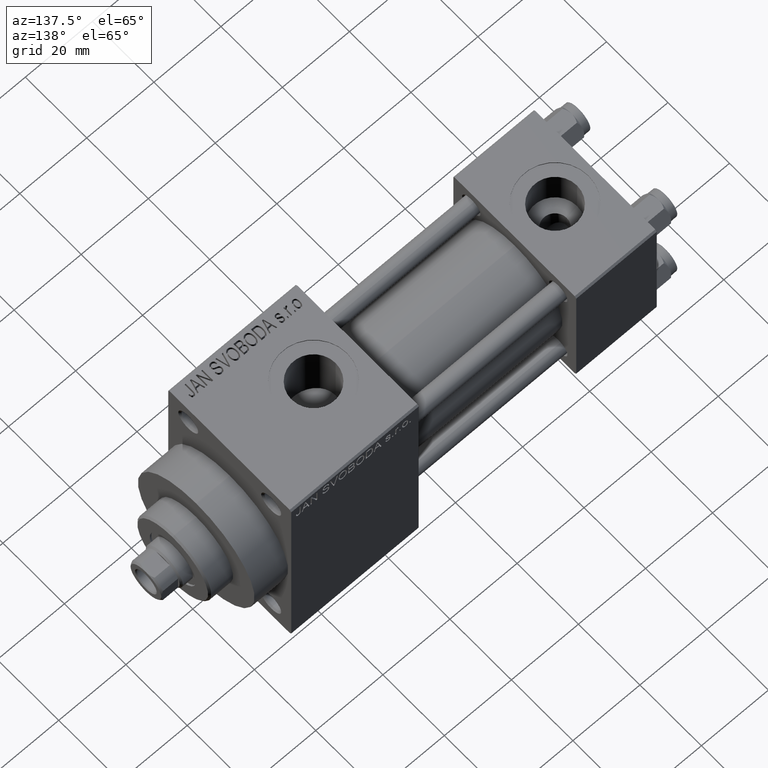
[diagram: clean part render]
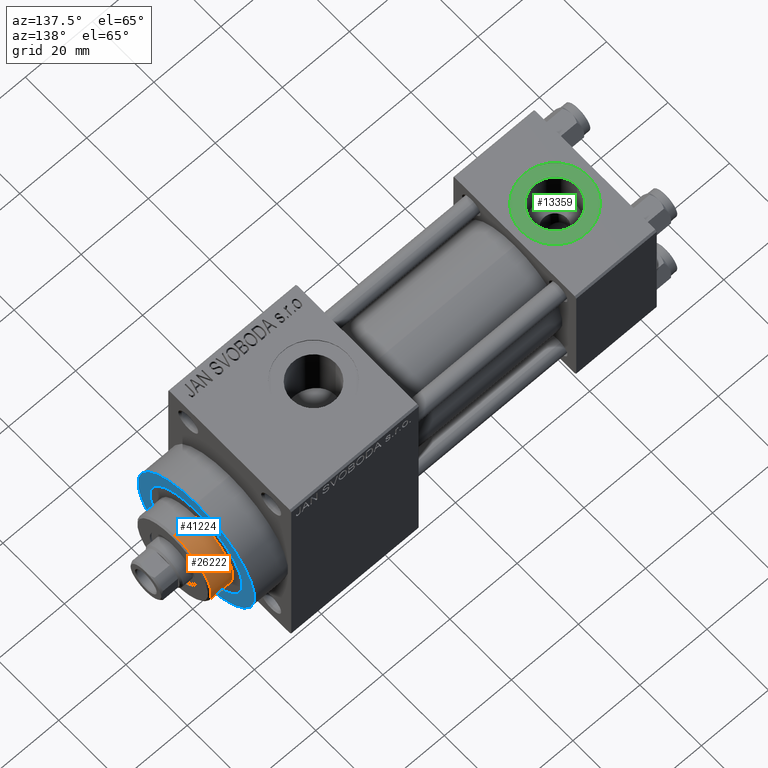
[diagram: same view with three faces highlighted in distinct colors, each labeled with its STEP entity id]
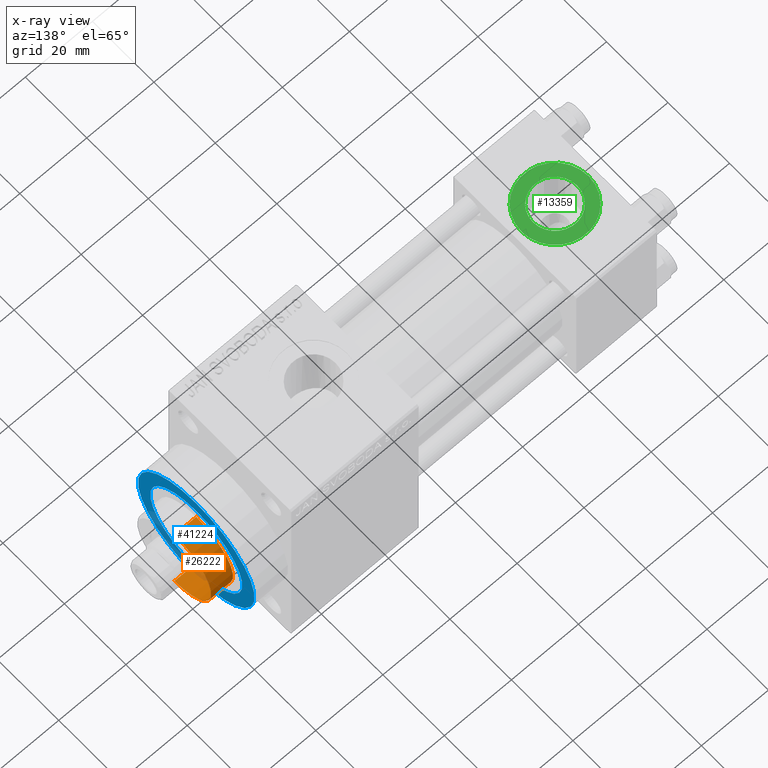
[diagram: x-ray of the same camera — body ghosted, the three highlighted faces saturated]
A machine part, auxiliary view with three faces highlighted in distinct colors.
The next image is the same camera in x-ray (body ghosted, the three faces saturated) — at least one of them is partly hidden behind the body in this view.
Their STEP definitions:

[orange] entity #26222 — the highlighted cylindrical surface (partial cylindrical patch) has radius 12 mm, axis along (-1, 0, 0).
#4582 = EDGE_CURVE ( 'NONE', #15709, #36265, #44507, .T. ) ;
#5243 = CARTESIAN_POINT ( 'NONE',  ( -12.00000000000000178, 0.000000000000000000, 43.25999999999999801 ) ) ;
#5631 = EDGE_CURVE ( 'NONE', #39775, #15709, #23730, .T. ) ;
#7467 = CARTESIAN_POINT ( 'NONE',  ( 12.00000000000000178, 1.469576158976824144E-15, 49.76000000000000512 ) ) ;
#9424 = CARTESIAN_POINT ( 'NONE',  ( 0.000000000000000000, 0.000000000000000000, 43.25999999999999801 ) ) ;
#11336 = CARTESIAN_POINT ( 'NONE',  ( 12.00000000000000178, 1.469576158976824144E-15, 50.25999999999999801 ) ) ;
#11457 = ORIENTED_EDGE ( 'NONE', *, *, #33316, .F. ) ;
#14896 = LINE ( 'NONE', #11336, #30639 ) ;
#15709 = VERTEX_POINT ( 'NONE', #26873 ) ;
#19821 = DIRECTION ( 'NONE',  ( -0.000000000000000000, -0.000000000000000000, -1.000000000000000000 ) ) ;
#22785 = ORIENTED_EDGE ( 'NONE', *, *, #4582, .T. ) ;
#23048 = CARTESIAN_POINT ( 'NONE',  ( -12.00000000000000178, 0.000000000000000000, 50.25999999999999801 ) ) ;
#23730 = CIRCLE ( 'NONE', #25213, 12.00000000000000178 ) ;
#24125 = DIRECTION ( 'NONE',  ( 0.000000000000000000, 0.000000000000000000, 1.000000000000000000 ) ) ;
#24601 = AXIS2_PLACEMENT_3D ( 'NONE', #9424, #24125, #46076 ) ;
#25213 = AXIS2_PLACEMENT_3D ( 'NONE', #41892, #42884, #46679 ) ;
#25813 = DIRECTION ( 'NONE',  ( -0.000000000000000000, -0.000000000000000000, -1.000000000000000000 ) ) ;
#26222 = ADVANCED_FACE ( 'NONE', ( #30786 ), #37445, .T. ) ;
#26589 = VERTEX_POINT ( 'NONE', #33762 ) ;
#26618 = DIRECTION ( 'NONE',  ( -0.000000000000000000, -0.000000000000000000, -1.000000000000000000 ) ) ;
#26873 = CARTESIAN_POINT ( 'NONE',  ( -12.00000000000000178, 0.000000000000000000, 49.76000000000000512 ) ) ;
#28114 = EDGE_LOOP ( 'NONE', ( #11457, #39847, #22785, #44025 ) ) ;
#30297 = CARTESIAN_POINT ( 'NONE',  ( 0.000000000000000000, 0.000000000000000000, 50.25999999999999801 ) ) ;
#30639 = VECTOR ( 'NONE', #25813, 1000.000000000000000 ) ;
#30786 = FACE_OUTER_BOUND ( 'NONE', #28114, .T. ) ;
#32966 = CIRCLE ( 'NONE', #24601, 12.00000000000000178 ) ;
#33011 = EDGE_CURVE ( 'NONE', #36265, #26589, #32966, .T. ) ;
#33316 = EDGE_CURVE ( 'NONE', #39775, #26589, #14896, .T. ) ;
#33762 = CARTESIAN_POINT ( 'NONE',  ( 12.00000000000000178, 1.469576158976824144E-15, 43.25999999999999801 ) ) ;
#34355 = DIRECTION ( 'NONE',  ( -1.000000000000000000, 0.000000000000000000, 0.000000000000000000 ) ) ;
#36265 = VERTEX_POINT ( 'NONE', #5243 ) ;
#37445 = CYLINDRICAL_SURFACE ( 'NONE', #38131, 12.00000000000000178 ) ;
#38131 = AXIS2_PLACEMENT_3D ( 'NONE', #30297, #19821, #34355 ) ;
#39775 = VERTEX_POINT ( 'NONE', #7467 ) ;
#39847 = ORIENTED_EDGE ( 'NONE', *, *, #5631, .T. ) ;
#41892 = CARTESIAN_POINT ( 'NONE',  ( 0.000000000000000000, 0.000000000000000000, 49.76000000000000512 ) ) ;
#42884 = DIRECTION ( 'NONE',  ( 0.000000000000000000, 0.000000000000000000, -1.000000000000000000 ) ) ;
#44025 = ORIENTED_EDGE ( 'NONE', *, *, #33011, .T. ) ;
#44243 = VECTOR ( 'NONE', #26618, 1000.000000000000000 ) ;
#44507 = LINE ( 'NONE', #23048, #44243 ) ;
#46076 = DIRECTION ( 'NONE',  ( 1.000000000000000000, 0.000000000000000000, 0.000000000000000000 ) ) ;
#46679 = DIRECTION ( 'NONE',  ( 1.000000000000000000, 0.000000000000000000, 0.000000000000000000 ) ) ;

[blue] entity #41224 — the highlighted planar face has unit normal (1, 0, 0).
#3375 = CARTESIAN_POINT ( 'NONE',  ( 119.0000000000000142, 0.000000000000000000, 19.00000000000000000 ) ) ;
#4418 = CARTESIAN_POINT ( 'NONE',  ( 119.0000000000000142, 2.326828918379970970E-15, -19.00000000000000000 ) ) ;
#6524 = DIRECTION ( 'NONE',  ( 1.000000000000000000, 0.000000000000000000, 0.000000000000000000 ) ) ;
#7209 = ORIENTED_EDGE ( 'NONE', *, *, #45722, .F. ) ;
#10759 = CIRCLE ( 'NONE', #18335, 19.00000000000000000 ) ;
#11217 = EDGE_LOOP ( 'NONE', ( #7209, #17182 ) ) ;
#13296 = EDGE_LOOP ( 'NONE', ( #43618, #29512 ) ) ;
#13362 = FACE_OUTER_BOUND ( 'NONE', #13296, .T. ) ;
#13668 = CARTESIAN_POINT ( 'NONE',  ( 119.0000000000000142, 0.000000000000000000, 0.000000000000000000 ) ) ;
#14082 = AXIS2_PLACEMENT_3D ( 'NONE', #28939, #45966, #43490 ) ;
#16708 = CIRCLE ( 'NONE', #31890, 15.00000000000000000 ) ;
#17141 = FACE_BOUND ( 'NONE', #11217, .T. ) ;
#17182 = ORIENTED_EDGE ( 'NONE', *, *, #39369, .F. ) ;
#18128 = VERTEX_POINT ( 'NONE', #4418 ) ;
#18335 = AXIS2_PLACEMENT_3D ( 'NONE', #23967, #42103, #37820 ) ;
#19030 = DIRECTION ( 'NONE',  ( 0.000000000000000000, 0.000000000000000000, -1.000000000000000000 ) ) ;
#20898 = CIRCLE ( 'NONE', #46784, 19.00000000000000000 ) ;
#21476 = DIRECTION ( 'NONE',  ( 0.000000000000000000, 0.000000000000000000, -1.000000000000000000 ) ) ;
#21690 = AXIS2_PLACEMENT_3D ( 'NONE', #24032, #28087, #42634 ) ;
#23967 = CARTESIAN_POINT ( 'NONE',  ( 119.0000000000000142, 0.000000000000000000, 0.000000000000000000 ) ) ;
#24032 = CARTESIAN_POINT ( 'NONE',  ( 119.0000000000000142, 0.000000000000000000, 0.000000000000000000 ) ) ;
#26562 = EDGE_CURVE ( 'NONE', #46956, #18128, #10759, .T. ) ;
#28087 = DIRECTION ( 'NONE',  ( 1.000000000000000000, 0.000000000000000000, 0.000000000000000000 ) ) ;
#28939 = CARTESIAN_POINT ( 'NONE',  ( 119.0000000000000142, 0.000000000000000000, 0.000000000000000000 ) ) ;
#29512 = ORIENTED_EDGE ( 'NONE', *, *, #39175, .T. ) ;
#29996 = CARTESIAN_POINT ( 'NONE',  ( 119.0000000000000142, 0.000000000000000000, 0.000000000000000000 ) ) ;
#31890 = AXIS2_PLACEMENT_3D ( 'NONE', #13668, #6524, #21476 ) ;
#34614 = CIRCLE ( 'NONE', #14082, 15.00000000000000000 ) ;
#36750 = VERTEX_POINT ( 'NONE', #39916 ) ;
#37820 = DIRECTION ( 'NONE',  ( 0.000000000000000000, 0.000000000000000000, -1.000000000000000000 ) ) ;
#39175 = EDGE_CURVE ( 'NONE', #18128, #46956, #20898, .T. ) ;
#39369 = EDGE_CURVE ( 'NONE', #42998, #36750, #34614, .T. ) ;
#39916 = CARTESIAN_POINT ( 'NONE',  ( 119.0000000000000142, 0.000000000000000000, -15.00000000000000000 ) ) ;
#41224 = ADVANCED_FACE ( 'NONE', ( #17141, #13362 ), #42171, .T. ) ;
#41680 = DIRECTION ( 'NONE',  ( 1.000000000000000000, 0.000000000000000000, 0.000000000000000000 ) ) ;
#42103 = DIRECTION ( 'NONE',  ( 1.000000000000000000, 0.000000000000000000, 0.000000000000000000 ) ) ;
#42171 = PLANE ( 'NONE',  #21690 ) ;
#42634 = DIRECTION ( 'NONE',  ( 0.000000000000000000, 0.000000000000000000, -1.000000000000000000 ) ) ;
#42998 = VERTEX_POINT ( 'NONE', #46574 ) ;
#43490 = DIRECTION ( 'NONE',  ( 0.000000000000000000, 0.000000000000000000, -1.000000000000000000 ) ) ;
#43618 = ORIENTED_EDGE ( 'NONE', *, *, #26562, .T. ) ;
#45722 = EDGE_CURVE ( 'NONE', #36750, #42998, #16708, .T. ) ;
#45966 = DIRECTION ( 'NONE',  ( 1.000000000000000000, 0.000000000000000000, 0.000000000000000000 ) ) ;
#46574 = CARTESIAN_POINT ( 'NONE',  ( 119.0000000000000142, 1.836970198721029589E-15, 15.00000000000000000 ) ) ;
#46784 = AXIS2_PLACEMENT_3D ( 'NONE', #29996, #41680, #19030 ) ;
#46956 = VERTEX_POINT ( 'NONE', #3375 ) ;

[green] entity #13359 — the highlighted planar face has unit normal (0, 0, 1).
#325 = DIRECTION ( 'NONE',  ( 0.000000000000000000, 0.000000000000000000, 1.000000000000000000 ) ) ;
#1850 = CARTESIAN_POINT ( 'NONE',  ( 18.57999999999999829, 1.540743955509788682E-30, 19.79999999999999716 ) ) ;
#2076 = CARTESIAN_POINT ( 'NONE',  ( 22.00000000000000000, 1.540743955509788682E-30, 19.79999999999999716 ) ) ;
#3107 = CIRCLE ( 'NONE', #27434, 6.579999999999999183 ) ;
#3852 = DIRECTION ( 'NONE',  ( 1.000000000000000000, 0.000000000000000000, 0.000000000000000000 ) ) ;
#3898 = FACE_OUTER_BOUND ( 'NONE', #4861, .T. ) ;
#4861 = EDGE_LOOP ( 'NONE', ( #27463, #42700 ) ) ;
#5077 = DIRECTION ( 'NONE',  ( 1.000000000000000000, 0.000000000000000000, 0.000000000000000000 ) ) ;
#5145 = EDGE_CURVE ( 'NONE', #6955, #27888, #22140, .T. ) ;
#5257 = CIRCLE ( 'NONE', #32590, 9.999999999999998224 ) ;
#6955 = VERTEX_POINT ( 'NONE', #1850 ) ;
#7131 = AXIS2_PLACEMENT_3D ( 'NONE', #32939, #325, #43895 ) ;
#7659 = CIRCLE ( 'NONE', #34282, 9.999999999999998224 ) ;
#8287 = DIRECTION ( 'NONE',  ( 1.000000000000000000, 0.000000000000000000, 0.000000000000000000 ) ) ;
#8658 = CARTESIAN_POINT ( 'NONE',  ( 12.00000000000000000, 1.540743955509788682E-30, 19.79999999999999716 ) ) ;
#9784 = DIRECTION ( 'NONE',  ( 1.000000000000000000, 0.000000000000000000, 0.000000000000000000 ) ) ;
#13359 = ADVANCED_FACE ( 'NONE', ( #40101, #3898 ), #18406, .T. ) ;
#14229 = CARTESIAN_POINT ( 'NONE',  ( 5.420000000000000817, 8.058175938389596335E-16, 19.79999999999999716 ) ) ;
#14251 = ORIENTED_EDGE ( 'NONE', *, *, #5145, .F. ) ;
#16117 = AXIS2_PLACEMENT_3D ( 'NONE', #21915, #26193, #3852 ) ;
#17370 = DIRECTION ( 'NONE',  ( 0.000000000000000000, 0.000000000000000000, 1.000000000000000000 ) ) ;
#18406 = PLANE ( 'NONE',  #7131 ) ;
#18495 = VERTEX_POINT ( 'NONE', #31023 ) ;
#21915 = CARTESIAN_POINT ( 'NONE',  ( 12.00000000000000000, 1.540743955509788682E-30, 19.79999999999999716 ) ) ;
#22139 = VERTEX_POINT ( 'NONE', #2076 ) ;
#22140 = CIRCLE ( 'NONE', #16117, 6.579999999999999183 ) ;
#23143 = DIRECTION ( 'NONE',  ( 0.000000000000000000, 0.000000000000000000, 1.000000000000000000 ) ) ;
#23259 = DIRECTION ( 'NONE',  ( 0.000000000000000000, 0.000000000000000000, 1.000000000000000000 ) ) ;
#24090 = ORIENTED_EDGE ( 'NONE', *, *, #26270, .F. ) ;
#25512 = EDGE_CURVE ( 'NONE', #22139, #18495, #7659, .T. ) ;
#26193 = DIRECTION ( 'NONE',  ( 0.000000000000000000, 0.000000000000000000, 1.000000000000000000 ) ) ;
#26270 = EDGE_CURVE ( 'NONE', #27888, #6955, #3107, .T. ) ;
#27312 = CARTESIAN_POINT ( 'NONE',  ( 12.00000000000000000, 1.540743955509788682E-30, 19.79999999999999716 ) ) ;
#27434 = AXIS2_PLACEMENT_3D ( 'NONE', #8658, #23143, #5077 ) ;
#27463 = ORIENTED_EDGE ( 'NONE', *, *, #25512, .T. ) ;
#27888 = VERTEX_POINT ( 'NONE', #14229 ) ;
#31023 = CARTESIAN_POINT ( 'NONE',  ( 2.000000000000003553, 1.224646799147354440E-15, 19.79999999999999716 ) ) ;
#31447 = CARTESIAN_POINT ( 'NONE',  ( 12.00000000000000000, 1.540743955509788682E-30, 19.79999999999999716 ) ) ;
#32590 = AXIS2_PLACEMENT_3D ( 'NONE', #31447, #17370, #9784 ) ;
#32939 = CARTESIAN_POINT ( 'NONE',  ( 12.00000000000000000, 1.540743955509788682E-30, 19.79999999999999716 ) ) ;
#34282 = AXIS2_PLACEMENT_3D ( 'NONE', #27312, #23259, #8287 ) ;
#36205 = EDGE_LOOP ( 'NONE', ( #14251, #24090 ) ) ;
#40101 = FACE_BOUND ( 'NONE', #36205, .T. ) ;
#42700 = ORIENTED_EDGE ( 'NONE', *, *, #44326, .T. ) ;
#43895 = DIRECTION ( 'NONE',  ( 1.000000000000000000, 0.000000000000000000, -0.000000000000000000 ) ) ;
#44326 = EDGE_CURVE ( 'NONE', #18495, #22139, #5257, .T. ) ;